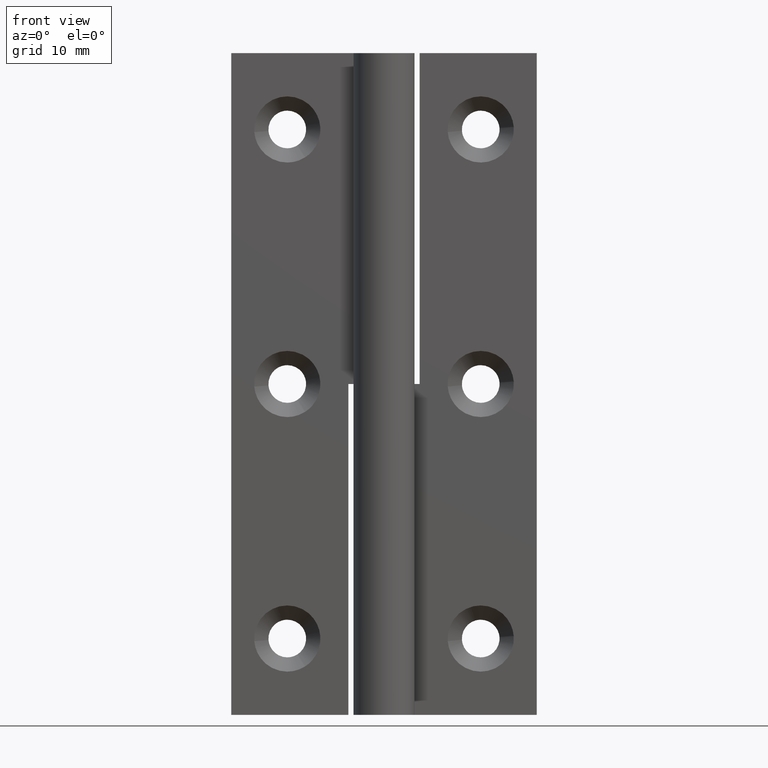
[diagram: clean part render]
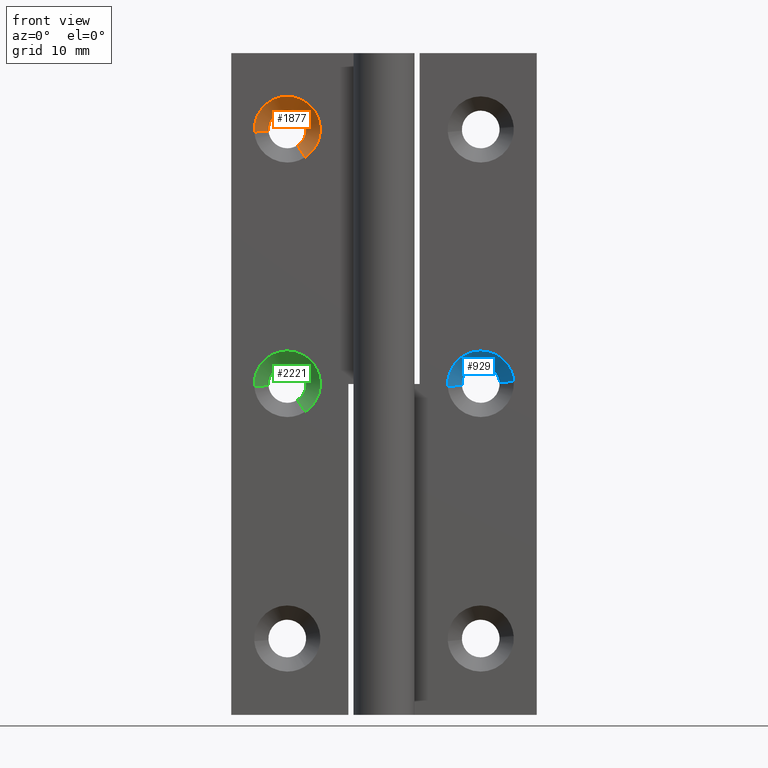
[diagram: same view with three faces highlighted in distinct colors, each labeled with its STEP entity id]
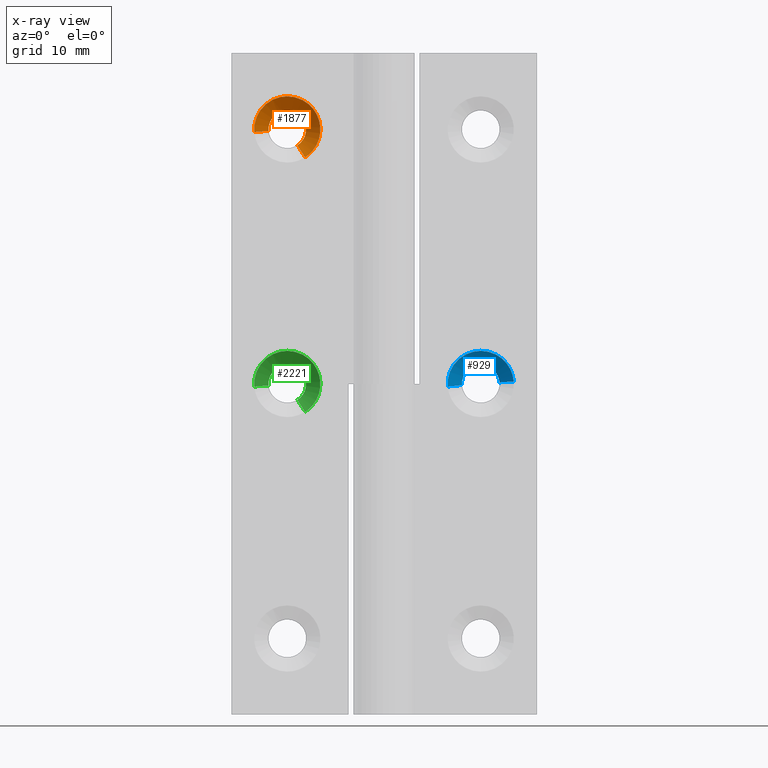
[diagram: x-ray of the same camera — body ghosted, the three highlighted faces saturated]
A machine part, front view with three faces highlighted in distinct colors.
The next image is the same camera in x-ray (body ghosted, the three faces saturated) — at least one of them is partly hidden behind the body in this view.
Their STEP definitions:

[orange] entity #1877 — the highlighted face is a freeform B-spline surface patch.
#1741=CARTESIAN_POINT('',(-8.523800809895139,2.935000000000001,55.969889311311100));
#1742=CARTESIAN_POINT('',(-7.605093862387939,2.935000000000000,56.556014800043101));
#1743=CARTESIAN_POINT('',(-7.690595039274374,2.935000000000001,57.642410258746040));
#1744=CARTESIAN_POINT('',(-7.832998298020414,2.935000000000001,59.451815219471669));
#1745=CARTESIAN_POINT('',(-9.642403258746040,2.935000000000001,59.309411960725633));
#1746=CARTESIAN_POINT('',(-11.451808219471665,2.935000000000001,59.167008701979597));
#1747=CARTESIAN_POINT('',(-11.309404960725630,2.935000000000001,57.357603741253953));
#1748=CARTESIAN_POINT('',(-7.732689524084956,1.464125000000000,54.729882779437688));
#1749=CARTESIAN_POINT('',(-6.069462972492544,1.464125000000000,55.791004041303943));
#1750=CARTESIAN_POINT('',(-6.224254256019662,1.464125000000000,57.757813781174733));
#1751=CARTESIAN_POINT('',(-6.482061037194396,1.464125000000000,61.033559525155063));
#1752=CARTESIAN_POINT('',(-9.757806781174734,1.464125000000000,60.775752743980327));
#1753=CARTESIAN_POINT('',(-13.033552525155072,1.464125000000000,60.517945962805598));
#1754=CARTESIAN_POINT('',(-12.775745743980339,1.464125000000000,57.242200218825261));
#1762=(BOUNDED_SURFACE()B_SPLINE_SURFACE(2,1,((#1741,#1748),(#1742,#1749),(#1743,#1750),(#1744,#1751),(#1745,#1752),(#1746,#1753),(#1747,#1754)),.UNSPECIFIED.,.F.,.F.,.U.)B_SPLINE_SURFACE_WITH_KNOTS((3,2,2,3),(2,2),(0.0,3.702066850794523,9.146282807845294,14.590498764896060),(0.0,2.080131373555525),.UNSPECIFIED.)GEOMETRIC_REPRESENTATION_ITEM()RATIONAL_B_SPLINE_SURFACE(((0.872532871172386,0.872532871172386),(0.800832611206852,0.800832611206852),(1.0,1.0),(0.707106781186548,0.707106781186548),(1.0,1.0),(0.707106781186548,0.707106781186548),(1.0,1.0)))REPRESENTATION_ITEM('')SURFACE());
#1763=CARTESIAN_POINT('',(-7.662932376239446,2.900000000000000,57.718370334217880));
#1764=VERTEX_POINT('',#1763);
#1765=CARTESIAN_POINT('',(-8.504976031842233,2.899999999983131,55.940382909760942));
#1766=VERTEX_POINT('',#1765);
#1767=CARTESIAN_POINT('',(-7.662932376239446,2.900000000000000,57.718370334217887));
#1768=CARTESIAN_POINT('',(-7.650000000000000,2.900000000000000,57.609571621459999));
#1769=CARTESIAN_POINT('',(-7.650000000000000,2.900000000000000,57.500006999999997));
#1770=CARTESIAN_POINT('',(-7.650000000000000,2.900000000000001,56.485848736794274));
#1771=CARTESIAN_POINT('',(-8.504976031842233,2.899999999983131,55.940382909760942));
#1779=(BOUNDED_CURVE()B_SPLINE_CURVE(2,(#1767,#1768,#1769,#1770,#1771),.UNSPECIFIED.,.F.,.U.)B_SPLINE_CURVE_WITH_KNOTS((3,2,3),(0.229562473496716,0.250000000000000,0.407950112574074),.UNSPECIFIED.)CURVE()GEOMETRIC_REPRESENTATION_ITEM()RATIONAL_B_SPLINE_CURVE((0.956026754150786,0.976055948311472,1.0,0.814949932464930,0.863729296921893))REPRESENTATION_ITEM(''));
#1780=EDGE_CURVE('',#1764,#1766,#1779,.T.);
#1781=ORIENTED_EDGE('',*,*,#1780,.T.);
#1782=CARTESIAN_POINT('',(-7.751984921227473,1.499999999995507,54.760126841231539));
#1783=VERTEX_POINT('',#1782);
#1784=CARTESIAN_POINT('',(-8.504976031842233,2.899999999983131,55.940382909760942));
#1785=CARTESIAN_POINT('',(-7.751984921227473,1.499999999995507,54.760126841231539));
#1786=QUASI_UNIFORM_CURVE('',1,(#1784,#1785),.UNSPECIFIED.,.F.,.U.);
#1787=EDGE_CURVE('',#1766,#1783,#1786,.T.);
#1788=ORIENTED_EDGE('',*,*,#1787,.T.);
#1789=CARTESIAN_POINT('',(-9.500000000000000,1.500000000000000,60.750006999999997));
#1790=VERTEX_POINT('',#1789);
#1791=CARTESIAN_POINT('',(-9.500000000000000,1.500000000000000,60.750006999999997));
#1792=CARTESIAN_POINT('',(-6.249999999999999,1.500000000000000,60.750007000000004));
#1793=CARTESIAN_POINT('',(-6.250000000000000,1.500000000000000,57.500006999999997));
#1794=CARTESIAN_POINT('',(-6.250000000000000,1.500000000000000,55.718377618060089));
#1795=CARTESIAN_POINT('',(-7.751984921227473,1.499999999995507,54.760126841231546));
#1803=(BOUNDED_CURVE()B_SPLINE_CURVE(2,(#1791,#1792,#1793,#1794,#1795),.UNSPECIFIED.,.F.,.U.)B_SPLINE_CURVE_WITH_KNOTS((3,2,3),(0.0,0.250000000000000,0.407950112619774),.UNSPECIFIED.)CURVE()GEOMETRIC_REPRESENTATION_ITEM()RATIONAL_B_SPLINE_CURVE((1.0,0.707106781186547,1.0,0.814949932411389,0.863729296950120))REPRESENTATION_ITEM(''));
#1804=EDGE_CURVE('',#1790,#1783,#1803,.T.);
#1805=ORIENTED_EDGE('',*,*,#1804,.F.);
#1806=CARTESIAN_POINT('',(-12.739981334661300,1.499999999928261,57.245014938334052));
#1807=VERTEX_POINT('',#1806);
#1808=CARTESIAN_POINT('',(-12.739981334661300,1.499999999928261,57.245014938334052));
#1809=CARTESIAN_POINT('',(-12.750000000000004,1.500000000000000,57.372314151677728));
#1810=CARTESIAN_POINT('',(-12.750000000000000,1.500000000000000,57.500006999999997));
#1811=CARTESIAN_POINT('',(-12.750000000000002,1.500000000000000,60.750007000000004));
#1812=CARTESIAN_POINT('',(-9.500000000000000,1.500000000000000,60.750006999999997));
#1820=(BOUNDED_CURVE()B_SPLINE_CURVE(2,(#1808,#1809,#1810,#1811,#1812),.UNSPECIFIED.,.F.,.U.)B_SPLINE_CURVE_WITH_KNOTS((3,2,3),(0.736331300575115,0.750000000000000,1.0),.UNSPECIFIED.)CURVE()GEOMETRIC_REPRESENTATION_ITEM()RATIONAL_B_SPLINE_CURVE((0.969723356051501,0.983986122513807,1.0,0.707106781186547,1.0))REPRESENTATION_ITEM(''));
#1821=EDGE_CURVE('',#1807,#1790,#1820,.T.);
#1822=ORIENTED_EDGE('',*,*,#1821,.F.);
#1823=CARTESIAN_POINT('',(-11.344297067437999,2.899999999921151,57.354857672301492));
#1824=VERTEX_POINT('',#1823);
#1825=CARTESIAN_POINT('',(-11.344297067437999,2.899999999921151,57.354857672301492));
#1826=CARTESIAN_POINT('',(-12.739981334661300,1.499999999928261,57.245014938334052));
#1827=QUASI_UNIFORM_CURVE('',1,(#1825,#1826),.UNSPECIFIED.,.F.,.U.);
#1828=EDGE_CURVE('',#1824,#1807,#1827,.T.);
#1829=ORIENTED_EDGE('',*,*,#1828,.F.);
#1830=CARTESIAN_POINT('',(-11.346549377067291,2.900000000000000,57.387067201645358));
#1831=VERTEX_POINT('',#1830);
#1832=CARTESIAN_POINT('',(-11.344297067437994,2.899999999921151,57.354857672301492));
#1833=CARTESIAN_POINT('',(-11.345563766340369,2.900000000000000,57.370952608766139));
#1834=CARTESIAN_POINT('',(-11.346549377067291,2.900000000000000,57.387067201645365));
#1842=(BOUNDED_CURVE()B_SPLINE_CURVE(2,(#1832,#1833,#1834),.UNSPECIFIED.,.F.,.U.)B_SPLINE_CURVE_WITH_KNOTS((3,3),(0.736331300522007,0.739332962201761),.UNSPECIFIED.)CURVE()GEOMETRIC_REPRESENTATION_ITEM()RATIONAL_B_SPLINE_CURVE((0.969723355940669,0.972855475404706,0.976072041587030))REPRESENTATION_ITEM(''));
#1843=EDGE_CURVE('',#1824,#1831,#1842,.T.);
#1844=ORIENTED_EDGE('',*,*,#1843,.T.);
#1845=CARTESIAN_POINT('',(-9.500000000000000,2.900000000000000,59.350006999999998));
#1846=VERTEX_POINT('',#1845);
#1847=CARTESIAN_POINT('',(-11.346549377067298,2.900000000000000,57.387067201645358));
#1848=CARTESIAN_POINT('',(-11.350000000000001,2.900000000000000,57.443484387681863));
#1849=CARTESIAN_POINT('',(-11.350000000000000,2.900000000000000,57.500006999999997));
#1850=CARTESIAN_POINT('',(-11.350000000000000,2.900000000000000,59.350006999999998));
#1851=CARTESIAN_POINT('',(-9.500000000000000,2.900000000000000,59.350006999999998));
#1859=(BOUNDED_CURVE()B_SPLINE_CURVE(2,(#1847,#1848,#1849,#1850,#1851),.UNSPECIFIED.,.F.,.U.)B_SPLINE_CURVE_WITH_KNOTS((3,2,3),(0.739332962201761,0.750000000000000,1.0),.UNSPECIFIED.)CURVE()GEOMETRIC_REPRESENTATION_ITEM()RATIONAL_B_SPLINE_CURVE((0.976072041587029,0.987502787856276,1.0,0.707106781186548,1.0))REPRESENTATION_ITEM(''));
#1860=EDGE_CURVE('',#1831,#1846,#1859,.T.);
#1861=ORIENTED_EDGE('',*,*,#1860,.T.);
#1862=CARTESIAN_POINT('',(-9.500000000000000,2.900000000000000,59.350006999999998));
#1863=CARTESIAN_POINT('',(-7.856877127175292,2.900000000000000,59.350006999999998));
#1864=CARTESIAN_POINT('',(-7.662932376239446,2.900000000000000,57.718370334217880));
#1872=(BOUNDED_CURVE()B_SPLINE_CURVE(2,(#1862,#1863,#1864),.UNSPECIFIED.,.F.,.U.)B_SPLINE_CURVE_WITH_KNOTS((3,3),(0.0,0.229562473496716),.UNSPECIFIED.)CURVE()GEOMETRIC_REPRESENTATION_ITEM()RATIONAL_B_SPLINE_CURVE((1.0,0.731050832875076,0.956026754150786))REPRESENTATION_ITEM(''));
#1873=EDGE_CURVE('',#1846,#1764,#1872,.T.);
#1874=ORIENTED_EDGE('',*,*,#1873,.T.);
#1875=EDGE_LOOP('',(#1781,#1788,#1805,#1822,#1829,#1844,#1861,#1874));
#1876=FACE_OUTER_BOUND('',#1875,.T.);
#1877=ADVANCED_FACE('',(#1876),#1762,.F.);

[blue] entity #929 — the highlighted face is a freeform B-spline surface patch.
#734=CARTESIAN_POINT('',(7.653450607385745,2.899999999976951,32.387060455836483));
#735=VERTEX_POINT('',#734);
#779=CARTESIAN_POINT('',(11.344297067460159,2.899999999864449,32.645149328139588));
#780=VERTEX_POINT('',#779);
#796=CARTESIAN_POINT('',(9.500000000000000,2.900000000000000,34.350000000000001));
#797=VERTEX_POINT('',#796);
#798=CARTESIAN_POINT('',(9.500000000000000,2.900000000000000,34.350000000000001));
#799=CARTESIAN_POINT('',(11.210122407647095,2.900000000000001,34.350000000000001));
#800=CARTESIAN_POINT('',(11.344297067460161,2.899999999864449,32.645149328139588));
#808=(BOUNDED_CURVE()B_SPLINE_CURVE(2,(#798,#799,#800),.UNSPECIFIED.,.F.,.U.)B_SPLINE_CURVE_WITH_KNOTS((3,3),(0.0,0.236331300440839),.UNSPECIFIED.)CURVE()GEOMETRIC_REPRESENTATION_ITEM()RATIONAL_B_SPLINE_CURVE((1.0,0.723120658830055,0.969723355771276))REPRESENTATION_ITEM(''));
#809=EDGE_CURVE('',#797,#780,#808,.T.);
#811=CARTESIAN_POINT('',(7.653450607385745,2.899999999976952,32.387060455836483));
#812=CARTESIAN_POINT('',(7.650000000000000,2.900000000000000,32.443477515241653));
#813=CARTESIAN_POINT('',(7.650000000000000,2.900000000000000,32.500000000000000));
#814=CARTESIAN_POINT('',(7.650000000000000,2.900000000000000,34.350000000000001));
#815=CARTESIAN_POINT('',(9.500000000000000,2.900000000000000,34.350000000000001));
#823=(BOUNDED_CURVE()B_SPLINE_CURVE(2,(#811,#812,#813,#814,#815),.UNSPECIFIED.,.F.,.U.)B_SPLINE_CURVE_WITH_KNOTS((3,2,3),(0.739332985974201,0.750000000000000,1.0),.UNSPECIFIED.)CURVE()GEOMETRIC_REPRESENTATION_ITEM()RATIONAL_B_SPLINE_CURVE((0.976072092535899,0.987502815707422,1.0,0.707106781186548,1.0))REPRESENTATION_ITEM(''));
#824=EDGE_CURVE('',#735,#797,#823,.T.);
#863=CARTESIAN_POINT('',(11.309404960725621,2.935000000000001,32.642403258746043));
#864=CARTESIAN_POINT('',(11.167001701979585,2.935000000000001,34.451808219471665));
#865=CARTESIAN_POINT('',(9.357596741253961,2.935000000000001,34.309404960725622));
#866=CARTESIAN_POINT('',(7.548191780528337,2.935000000000001,34.167001701979586));
#867=CARTESIAN_POINT('',(7.690595039274376,2.935000000000001,32.357596741253957));
#868=CARTESIAN_POINT('',(12.775745743980339,1.464125000000000,32.757806781174743));
#869=CARTESIAN_POINT('',(12.517938962805607,1.464125000000000,36.033552525155073));
#870=CARTESIAN_POINT('',(9.242193218825266,1.464125000000000,35.775745743980352));
#871=CARTESIAN_POINT('',(5.966447474844924,1.464125000000000,35.517938962805616));
#872=CARTESIAN_POINT('',(6.224254256019658,1.464125000000000,32.242193218825257));
#880=(BOUNDED_SURFACE()B_SPLINE_SURFACE(2,1,((#863,#868),(#864,#869),(#865,#870),(#866,#871),(#867,#872)),.UNSPECIFIED.,.F.,.F.,.U.)B_SPLINE_SURFACE_WITH_KNOTS((3,2,3),(2,2),(0.0,5.444215957050778,10.888431914101560),(0.0,2.080131373555536),.UNSPECIFIED.)GEOMETRIC_REPRESENTATION_ITEM()RATIONAL_B_SPLINE_SURFACE(((1.0,1.0),(0.707106781186548,0.707106781186548),(1.0,1.0),(0.707106781186548,0.707106781186548),(1.0,1.0)))REPRESENTATION_ITEM('')SURFACE());
#881=ORIENTED_EDGE('',*,*,#809,.T.);
#882=CARTESIAN_POINT('',(12.739981334661300,1.499999999928263,32.754992061665952));
#883=VERTEX_POINT('',#882);
#884=CARTESIAN_POINT('',(11.344297067460159,2.899999999864449,32.645149328139588));
#885=CARTESIAN_POINT('',(12.739981334661300,1.499999999928263,32.754992061665952));
#886=QUASI_UNIFORM_CURVE('',1,(#884,#885),.UNSPECIFIED.,.F.,.U.);
#887=EDGE_CURVE('',#780,#883,#886,.T.);
#888=ORIENTED_EDGE('',*,*,#887,.T.);
#889=CARTESIAN_POINT('',(9.500000000000000,1.500000000000000,35.750000000000007));
#890=VERTEX_POINT('',#889);
#891=CARTESIAN_POINT('',(9.500000000000000,1.500000000000000,35.750000000000007));
#892=CARTESIAN_POINT('',(12.504269096875685,1.500000000000000,35.750000000000014));
#893=CARTESIAN_POINT('',(12.739981334661298,1.499999999928263,32.754992061665945));
#901=(BOUNDED_CURVE()B_SPLINE_CURVE(2,(#891,#892,#893),.UNSPECIFIED.,.F.,.U.)B_SPLINE_CURVE_WITH_KNOTS((3,3),(0.0,0.236331300575115),.UNSPECIFIED.)CURVE()GEOMETRIC_REPRESENTATION_ITEM()RATIONAL_B_SPLINE_CURVE((1.0,0.723120658672740,0.969723356051501))REPRESENTATION_ITEM(''));
#902=EDGE_CURVE('',#890,#883,#901,.T.);
#903=ORIENTED_EDGE('',*,*,#902,.F.);
#904=CARTESIAN_POINT('',(6.260018665338697,1.499999999928263,32.245007938334062));
#905=VERTEX_POINT('',#904);
#906=CARTESIAN_POINT('',(6.260018665338697,1.499999999928263,32.245007938334055));
#907=CARTESIAN_POINT('',(6.250000000000001,1.500000000000000,32.372307151677717));
#908=CARTESIAN_POINT('',(6.250000000000000,1.500000000000000,32.500000000000000));
#909=CARTESIAN_POINT('',(6.249999999999999,1.500000000000000,35.750000000000007));
#910=CARTESIAN_POINT('',(9.500000000000000,1.500000000000000,35.750000000000007));
#918=(BOUNDED_CURVE()B_SPLINE_CURVE(2,(#906,#907,#908,#909,#910),.UNSPECIFIED.,.F.,.U.)B_SPLINE_CURVE_WITH_KNOTS((3,2,3),(0.736331300575115,0.750000000000000,1.0),.UNSPECIFIED.)CURVE()GEOMETRIC_REPRESENTATION_ITEM()RATIONAL_B_SPLINE_CURVE((0.969723356051500,0.983986122513807,1.0,0.707106781186547,1.0))REPRESENTATION_ITEM(''));
#919=EDGE_CURVE('',#905,#890,#918,.T.);
#920=ORIENTED_EDGE('',*,*,#919,.F.);
#921=CARTESIAN_POINT('',(7.653450607385745,2.899999999976951,32.387060455836483));
#922=CARTESIAN_POINT('',(6.260018665338697,1.499999999928263,32.245007938334062));
#923=QUASI_UNIFORM_CURVE('',1,(#921,#922),.UNSPECIFIED.,.F.,.U.);
#924=EDGE_CURVE('',#735,#905,#923,.T.);
#925=ORIENTED_EDGE('',*,*,#924,.F.);
#926=ORIENTED_EDGE('',*,*,#824,.T.);
#927=EDGE_LOOP('',(#881,#888,#903,#920,#925,#926));
#928=FACE_OUTER_BOUND('',#927,.T.);
#929=ADVANCED_FACE('',(#928),#880,.F.);

[green] entity #2221 — the highlighted face is a freeform B-spline surface patch.
#2085=CARTESIAN_POINT('',(-8.523800809895139,2.935000000000001,30.969882311311110));
#2086=CARTESIAN_POINT('',(-7.605093862387939,2.935000000000000,31.556007800043112));
#2087=CARTESIAN_POINT('',(-7.690595039274374,2.935000000000001,32.642403258746043));
#2088=CARTESIAN_POINT('',(-7.832998298020414,2.935000000000001,34.451808219471680));
#2089=CARTESIAN_POINT('',(-9.642403258746040,2.935000000000001,34.309404960725630));
#2090=CARTESIAN_POINT('',(-11.451808219471665,2.935000000000001,34.167001701979586));
#2091=CARTESIAN_POINT('',(-11.309404960725630,2.935000000000001,32.357596741253957));
#2092=CARTESIAN_POINT('',(-7.732689524084956,1.464125000000000,29.729875779437684));
#2093=CARTESIAN_POINT('',(-6.069462972492544,1.464125000000000,30.790997041303939));
#2094=CARTESIAN_POINT('',(-6.224254256019662,1.464125000000000,32.757806781174743));
#2095=CARTESIAN_POINT('',(-6.482061037194396,1.464125000000000,36.033552525155073));
#2096=CARTESIAN_POINT('',(-9.757806781174734,1.464125000000000,35.775745743980337));
#2097=CARTESIAN_POINT('',(-13.033552525155072,1.464125000000000,35.517938962805594));
#2098=CARTESIAN_POINT('',(-12.775745743980339,1.464125000000000,32.242193218825257));
#2106=(BOUNDED_SURFACE()B_SPLINE_SURFACE(2,1,((#2085,#2092),(#2086,#2093),(#2087,#2094),(#2088,#2095),(#2089,#2096),(#2090,#2097),(#2091,#2098)),.UNSPECIFIED.,.F.,.F.,.U.)B_SPLINE_SURFACE_WITH_KNOTS((3,2,2,3),(2,2),(0.0,3.702066850794523,9.146282807845294,14.590498764896060),(0.0,2.080131373555528),.UNSPECIFIED.)GEOMETRIC_REPRESENTATION_ITEM()RATIONAL_B_SPLINE_SURFACE(((0.872532871172386,0.872532871172386),(0.800832611206852,0.800832611206852),(1.0,1.0),(0.707106781186548,0.707106781186548),(1.0,1.0),(0.707106781186548,0.707106781186548),(1.0,1.0)))REPRESENTATION_ITEM('')SURFACE());
#2107=CARTESIAN_POINT('',(-7.662932376239445,2.900000000000000,32.718363334217869));
#2108=VERTEX_POINT('',#2107);
#2109=CARTESIAN_POINT('',(-8.504976031842229,2.899999999983129,30.940375909760949));
#2110=VERTEX_POINT('',#2109);
#2111=CARTESIAN_POINT('',(-7.662932376239445,2.900000000000000,32.718363334217877));
#2112=CARTESIAN_POINT('',(-7.649999999999999,2.900000000000000,32.609564621459995));
#2113=CARTESIAN_POINT('',(-7.650000000000000,2.900000000000000,32.500000000000000));
#2114=CARTESIAN_POINT('',(-7.650000000000000,2.900000000000001,31.485841736794274));
#2115=CARTESIAN_POINT('',(-8.504976031842229,2.899999999983128,30.940375909760952));
#2123=(BOUNDED_CURVE()B_SPLINE_CURVE(2,(#2111,#2112,#2113,#2114,#2115),.UNSPECIFIED.,.F.,.U.)B_SPLINE_CURVE_WITH_KNOTS((3,2,3),(0.229562473496717,0.250000000000000,0.407950112574073),.UNSPECIFIED.)CURVE()GEOMETRIC_REPRESENTATION_ITEM()RATIONAL_B_SPLINE_CURVE((0.956026754150787,0.976055948311473,1.0,0.814949932464930,0.863729296921893))REPRESENTATION_ITEM(''));
#2124=EDGE_CURVE('',#2108,#2110,#2123,.T.);
#2125=ORIENTED_EDGE('',*,*,#2124,.T.);
#2126=CARTESIAN_POINT('',(-7.751984921227470,1.499999999995505,29.760119841231539));
#2127=VERTEX_POINT('',#2126);
#2128=CARTESIAN_POINT('',(-8.504976031842229,2.899999999983129,30.940375909760949));
#2129=CARTESIAN_POINT('',(-7.751984921227470,1.499999999995505,29.760119841231539));
#2130=QUASI_UNIFORM_CURVE('',1,(#2128,#2129),.UNSPECIFIED.,.F.,.U.);
#2131=EDGE_CURVE('',#2110,#2127,#2130,.T.);
#2132=ORIENTED_EDGE('',*,*,#2131,.T.);
#2133=CARTESIAN_POINT('',(-9.500000000000000,1.500000000000000,35.750000000000007));
#2134=VERTEX_POINT('',#2133);
#2135=CARTESIAN_POINT('',(-9.500000000000000,1.500000000000000,35.750000000000007));
#2136=CARTESIAN_POINT('',(-6.249999999999999,1.500000000000000,35.750000000000007));
#2137=CARTESIAN_POINT('',(-6.250000000000000,1.500000000000000,32.500000000000000));
#2138=CARTESIAN_POINT('',(-6.250000000000000,1.500000000000000,30.718370618060096));
#2139=CARTESIAN_POINT('',(-7.751984921227470,1.499999999995505,29.760119841231536));
#2147=(BOUNDED_CURVE()B_SPLINE_CURVE(2,(#2135,#2136,#2137,#2138,#2139),.UNSPECIFIED.,.F.,.U.)B_SPLINE_CURVE_WITH_KNOTS((3,2,3),(0.0,0.250000000000000,0.407950112619773),.UNSPECIFIED.)CURVE()GEOMETRIC_REPRESENTATION_ITEM()RATIONAL_B_SPLINE_CURVE((1.0,0.707106781186547,1.0,0.814949932411389,0.863729296950120))REPRESENTATION_ITEM(''));
#2148=EDGE_CURVE('',#2134,#2127,#2147,.T.);
#2149=ORIENTED_EDGE('',*,*,#2148,.F.);
#2150=CARTESIAN_POINT('',(-12.739981334661300,1.499999999928262,32.245007938334062));
#2151=VERTEX_POINT('',#2150);
#2152=CARTESIAN_POINT('',(-12.739981334661302,1.499999999928262,32.245007938334055));
#2153=CARTESIAN_POINT('',(-12.750000000000002,1.500000000000000,32.372307151677717));
#2154=CARTESIAN_POINT('',(-12.750000000000000,1.500000000000000,32.500000000000000));
#2155=CARTESIAN_POINT('',(-12.750000000000002,1.500000000000000,35.750000000000007));
#2156=CARTESIAN_POINT('',(-9.500000000000000,1.500000000000000,35.750000000000007));
#2164=(BOUNDED_CURVE()B_SPLINE_CURVE(2,(#2152,#2153,#2154,#2155,#2156),.UNSPECIFIED.,.F.,.U.)B_SPLINE_CURVE_WITH_KNOTS((3,2,3),(0.736331300575115,0.750000000000000,1.0),.UNSPECIFIED.)CURVE()GEOMETRIC_REPRESENTATION_ITEM()RATIONAL_B_SPLINE_CURVE((0.969723356051500,0.983986122513807,1.0,0.707106781186547,1.0))REPRESENTATION_ITEM(''));
#2165=EDGE_CURVE('',#2151,#2134,#2164,.T.);
#2166=ORIENTED_EDGE('',*,*,#2165,.F.);
#2167=CARTESIAN_POINT('',(-11.344297067437999,2.899999999921151,32.354850672301481));
#2168=VERTEX_POINT('',#2167);
#2169=CARTESIAN_POINT('',(-11.344297067437999,2.899999999921151,32.354850672301481));
#2170=CARTESIAN_POINT('',(-12.739981334661300,1.499999999928262,32.245007938334062));
#2171=QUASI_UNIFORM_CURVE('',1,(#2169,#2170),.UNSPECIFIED.,.F.,.U.);
#2172=EDGE_CURVE('',#2168,#2151,#2171,.T.);
#2173=ORIENTED_EDGE('',*,*,#2172,.F.);
#2174=CARTESIAN_POINT('',(-11.346549377067291,2.900000000000000,32.387060201645369));
#2175=VERTEX_POINT('',#2174);
#2176=CARTESIAN_POINT('',(-11.344297067437997,2.899999999921151,32.354850672301481));
#2177=CARTESIAN_POINT('',(-11.345563766340376,2.900000000000000,32.370945608766142));
#2178=CARTESIAN_POINT('',(-11.346549377067296,2.900000000000001,32.387060201645369));
#2186=(BOUNDED_CURVE()B_SPLINE_CURVE(2,(#2176,#2177,#2178),.UNSPECIFIED.,.F.,.U.)B_SPLINE_CURVE_WITH_KNOTS((3,3),(0.736331300522007,0.739332962201760),.UNSPECIFIED.)CURVE()GEOMETRIC_REPRESENTATION_ITEM()RATIONAL_B_SPLINE_CURVE((0.969723355940668,0.972855475404705,0.976072041587028))REPRESENTATION_ITEM(''));
#2187=EDGE_CURVE('',#2168,#2175,#2186,.T.);
#2188=ORIENTED_EDGE('',*,*,#2187,.T.);
#2189=CARTESIAN_POINT('',(-9.500000000000000,2.900000000000000,34.350000000000001));
#2190=VERTEX_POINT('',#2189);
#2191=CARTESIAN_POINT('',(-11.346549377067291,2.900000000000000,32.387060201645369));
#2192=CARTESIAN_POINT('',(-11.349999999999998,2.900000000000000,32.443477387681860));
#2193=CARTESIAN_POINT('',(-11.350000000000000,2.900000000000000,32.500000000000000));
#2194=CARTESIAN_POINT('',(-11.350000000000000,2.900000000000000,34.350000000000001));
#2195=CARTESIAN_POINT('',(-9.500000000000000,2.900000000000000,34.350000000000001));
#2203=(BOUNDED_CURVE()B_SPLINE_CURVE(2,(#2191,#2192,#2193,#2194,#2195),.UNSPECIFIED.,.F.,.U.)B_SPLINE_CURVE_WITH_KNOTS((3,2,3),(0.739332962201761,0.750000000000000,1.0),.UNSPECIFIED.)CURVE()GEOMETRIC_REPRESENTATION_ITEM()RATIONAL_B_SPLINE_CURVE((0.976072041587030,0.987502787856276,1.0,0.707106781186548,1.0))REPRESENTATION_ITEM(''));
#2204=EDGE_CURVE('',#2175,#2190,#2203,.T.);
#2205=ORIENTED_EDGE('',*,*,#2204,.T.);
#2206=CARTESIAN_POINT('',(-9.500000000000000,2.900000000000000,34.350000000000001));
#2207=CARTESIAN_POINT('',(-7.856877127175287,2.900000000000000,34.350000000000001));
#2208=CARTESIAN_POINT('',(-7.662932376239445,2.900000000000000,32.718363334217869));
#2216=(BOUNDED_CURVE()B_SPLINE_CURVE(2,(#2206,#2207,#2208),.UNSPECIFIED.,.F.,.U.)B_SPLINE_CURVE_WITH_KNOTS((3,3),(0.0,0.229562473496717),.UNSPECIFIED.)CURVE()GEOMETRIC_REPRESENTATION_ITEM()RATIONAL_B_SPLINE_CURVE((1.0,0.731050832875075,0.956026754150787))REPRESENTATION_ITEM(''));
#2217=EDGE_CURVE('',#2190,#2108,#2216,.T.);
#2218=ORIENTED_EDGE('',*,*,#2217,.T.);
#2219=EDGE_LOOP('',(#2125,#2132,#2149,#2166,#2173,#2188,#2205,#2218));
#2220=FACE_OUTER_BOUND('',#2219,.T.);
#2221=ADVANCED_FACE('',(#2220),#2106,.F.);